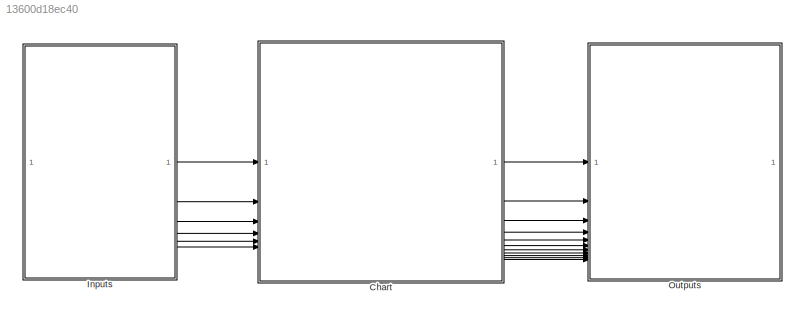
MODEL slx_13600d18ec40
KIND model
CONFIG AbsTol = auto
CONFIG EnableMultiTasking = on
CONFIG FixedStep = 1e-3
CONFIG MaxStep = auto
CONFIG MinStep = auto
CONFIG RelTol = 1e-3
CONFIG SampleTimeConstraint = Unconstrained
CONFIG SolverName = FixedStepAuto
CONFIG StartTime = 0.0
CONFIG StopTime = 10.0
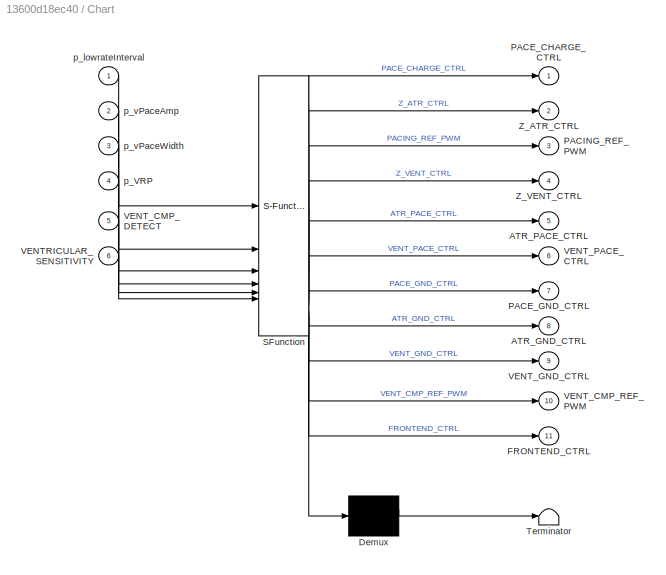
BLOCK [SubSystem] Chart
  ErrorFcn = Stateflow.Translate.translate
  PermitHierarchicalResolution = ExplicitOnly
  PortSchema = {"entries":[{"content":{"sides":[{"content":{"connectorIds":["In1","In2","In3","In4","In6","In5"]},"type":"ConnectorPlacement.EquallySpacedRectSide","uuid":"eebbb991-31ae-4684-8ac7-c8e612c06f23"},{"content":{"connectorIds":["Out1","Out5","Out6","Out2","Out4","Out7","Out3","Out8","Out9","Out10","Out11"],"side":"RIGHT"},"type":"ConnectorPlacement.EquallySpacedRectSide","uuid":"52117d4c-a990-4fec-964...<+486ch>
  SFBlockType = Chart
  TreatAsAtomicUnit = on
BLOCK [Demux] Chart/ Demux 
  Outputs = 1
BLOCK [S-Function] Chart/ SFunction 
  EnableBusSupport = on
  FunctionName = sf_sfun
  PortCounts = [6 12]
  SFcnIsStateOwnerBlock = off
  SFunctionDeploymentMode = off
  Tag = Stateflow S-Function 3
BLOCK [Terminator] Chart/ Terminator 
BLOCK [Outport] Chart/ATR_GND_CTRL
  Port = 8
BLOCK [Outport] Chart/ATR_PACE_CTRL
  Port = 5
BLOCK [Outport] Chart/FRONTEND_CTRL
  Port = 11
BLOCK [Outport] Chart/PACE_CHARGE_CTRL
BLOCK [Outport] Chart/PACE_GND_CTRL
  Port = 7
BLOCK [Outport] Chart/PACING_REF_PWM
  Port = 3
BLOCK [Inport] Chart/VENTRICULAR_SENSITIVITY
  Port = 6
BLOCK [Inport] Chart/VENT_CMP_DETECT
  Port = 5
BLOCK [Outport] Chart/VENT_CMP_REF_PWM
  Port = 10
BLOCK [Outport] Chart/VENT_GND_CTRL
  Port = 9
BLOCK [Outport] Chart/VENT_PACE_CTRL
  Port = 6
BLOCK [Outport] Chart/Z_ATR_CTRL
  Port = 2
BLOCK [Outport] Chart/Z_VENT_CTRL
  Port = 4
BLOCK [Inport] Chart/p_VRP
  Port = 4
BLOCK [Inport] Chart/p_lowrateInterval
BLOCK [Inport] Chart/p_vPaceAmp
  Port = 2
BLOCK [Inport] Chart/p_vPaceWidth
  Port = 3
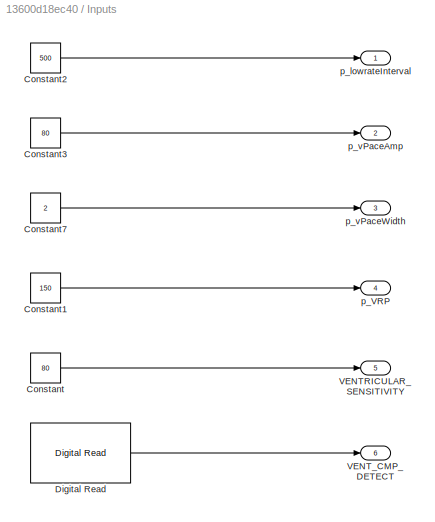
BLOCK [SubSystem] Inputs
BLOCK [Constant] Inputs/Constant
  Value = 80
BLOCK [Constant] Inputs/Constant1
  Value = 150
BLOCK [Constant] Inputs/Constant2
  Value = 500
BLOCK [Constant] Inputs/Constant3
  Value = 80
BLOCK [Constant] Inputs/Constant7
  Value = 2
BLOCK [Reference] Inputs/Digital Read  REF=frdmk64flib/Digital Read
  SourceBlock = frdmk64flib/Digital Read
  SourceType = freedomk64f.DigitalRead
BLOCK [Outport] Inputs/VENTRICULAR_SENSITIVITY
  Port = 5
BLOCK [Outport] Inputs/VENT_CMP_DETECT
  Port = 6
BLOCK [Outport] Inputs/p_VRP
  Port = 4
BLOCK [Outport] Inputs/p_lowrateInterval
BLOCK [Outport] Inputs/p_vPaceAmp
  Port = 2
BLOCK [Outport] Inputs/p_vPaceWidth
  Port = 3
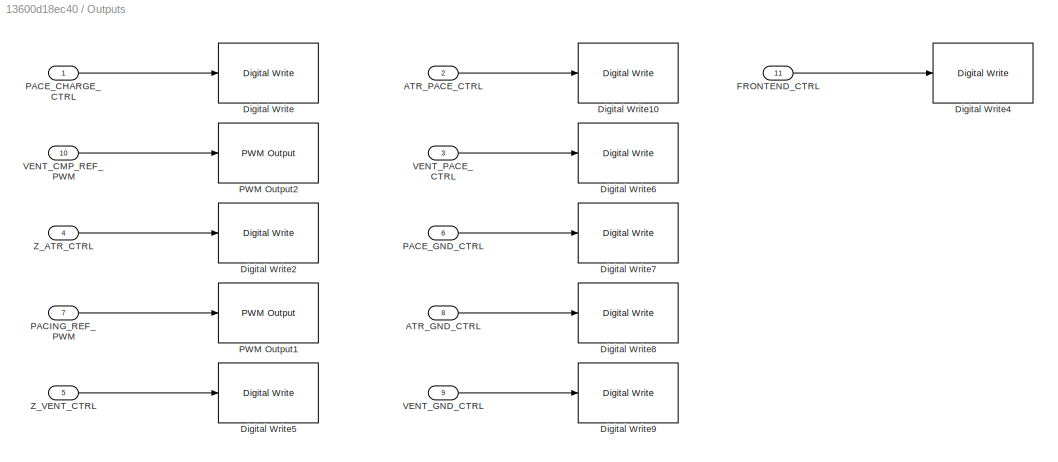
BLOCK [SubSystem] Outputs
BLOCK [Inport] Outputs/ATR_GND_CTRL
  Port = 8
BLOCK [Inport] Outputs/ATR_PACE_CTRL
  Port = 2
BLOCK [Reference] Outputs/Digital Write  REF=frdmk64flib/Digital Write
  SourceBlock = frdmk64flib/Digital Write
  SourceType = freedomk64f.DigitalWrite
BLOCK [Reference] Outputs/Digital Write10  REF=frdmk64flib/Digital Write
  SourceBlock = frdmk64flib/Digital Write
  SourceType = freedomk64f.DigitalWrite
BLOCK [Reference] Outputs/Digital Write2  REF=frdmk64flib/Digital Write
  SourceBlock = frdmk64flib/Digital Write
  SourceType = freedomk64f.DigitalWrite
BLOCK [Reference] Outputs/Digital Write4  REF=frdmk64flib/Digital Write
  SourceBlock = frdmk64flib/Digital Write
  SourceType = freedomk64f.DigitalWrite
BLOCK [Reference] Outputs/Digital Write5  REF=frdmk64flib/Digital Write
  SourceBlock = frdmk64flib/Digital Write
  SourceType = freedomk64f.DigitalWrite
BLOCK [Reference] Outputs/Digital Write6  REF=frdmk64flib/Digital Write
  SourceBlock = frdmk64flib/Digital Write
  SourceType = freedomk64f.DigitalWrite
BLOCK [Reference] Outputs/Digital Write7  REF=frdmk64flib/Digital Write
  SourceBlock = frdmk64flib/Digital Write
  SourceType = freedomk64f.DigitalWrite
BLOCK [Reference] Outputs/Digital Write8  REF=frdmk64flib/Digital Write
  SourceBlock = frdmk64flib/Digital Write
  SourceType = freedomk64f.DigitalWrite
BLOCK [Reference] Outputs/Digital Write9  REF=frdmk64flib/Digital Write
  SourceBlock = frdmk64flib/Digital Write
  SourceType = freedomk64f.DigitalWrite
BLOCK [Inport] Outputs/FRONTEND_CTRL
  Port = 11
BLOCK [Inport] Outputs/PACE_CHARGE_CTRL
BLOCK [Inport] Outputs/PACE_GND_CTRL
  Port = 6
BLOCK [Inport] Outputs/PACING_REF_PWM
  Port = 7
BLOCK [Reference] Outputs/PWM Output1  REF=frdmk64flib/PWM Output
  SourceBlock = frdmk64flib/PWM Output
  SourceType = freedomk64f.PWMOutput
BLOCK [Reference] Outputs/PWM Output2  REF=frdmk64flib/PWM Output
  SourceBlock = frdmk64flib/PWM Output
  SourceType = freedomk64f.PWMOutput
BLOCK [Inport] Outputs/VENT_CMP_REF_PWM
  Port = 10
BLOCK [Inport] Outputs/VENT_GND_CTRL
  Port = 9
BLOCK [Inport] Outputs/VENT_PACE_CTRL
  Port = 3
BLOCK [Inport] Outputs/Z_ATR_CTRL
  Port = 4
BLOCK [Inport] Outputs/Z_VENT_CTRL
  Port = 5
LINE Chart:1 -> Outputs:1
LINE Chart:10 -> Outputs:10
LINE Chart:11 -> Outputs:11
LINE Chart:2 -> Outputs:4
LINE Chart:3 -> Outputs:7
LINE Chart:4 -> Outputs:5
LINE Chart:5 -> Outputs:2
LINE Chart:6 -> Outputs:3
LINE Chart:7 -> Outputs:6
LINE Chart:8 -> Outputs:8
LINE Chart:9 -> Outputs:9
LINE Inputs/Constant1:1 -> Inputs/p_VRP:1
LINE Inputs/Constant2:1 -> Inputs/p_lowrateInterval:1
LINE Inputs/Constant3:1 -> Inputs/p_vPaceAmp:1
LINE Inputs/Constant7:1 -> Inputs/p_vPaceWidth:1
LINE Inputs/Constant:1 -> Inputs/VENTRICULAR_SENSITIVITY:1
LINE Inputs/Digital Read:1 -> Inputs/VENT_CMP_DETECT:1
LINE Inputs:1 -> Chart:1
LINE Inputs:2 -> Chart:2
LINE Inputs:3 -> Chart:3
LINE Inputs:4 -> Chart:4
LINE Inputs:5 -> Chart:6
LINE Inputs:6 -> Chart:5
LINE Outputs/ATR_GND_CTRL:1 -> Outputs/Digital Write8:1
LINE Outputs/ATR_PACE_CTRL:1 -> Outputs/Digital Write10:1
LINE Outputs/FRONTEND_CTRL:1 -> Outputs/Digital Write4:1
LINE Outputs/PACE_CHARGE_CTRL:1 -> Outputs/Digital Write:1
LINE Outputs/PACE_GND_CTRL:1 -> Outputs/Digital Write7:1
LINE Outputs/PACING_REF_PWM:1 -> Outputs/PWM Output1:1
LINE Outputs/VENT_CMP_REF_PWM:1 -> Outputs/PWM Output2:1
LINE Outputs/VENT_GND_CTRL:1 -> Outputs/Digital Write9:1
LINE Outputs/VENT_PACE_CTRL:1 -> Outputs/Digital Write6:1
LINE Outputs/Z_ATR_CTRL:1 -> Outputs/Digital Write2:1
LINE Outputs/Z_VENT_CTRL:1 -> Outputs/Digital Write5:1
CHART Chart states=3 transitions=6
  STATE_LABEL 'Pacing\nentry:\nPACE_CHARGE_CTRL = 0;\nPACE_GND_CTRL = 1;\nATR_PACE_CTRL = 0;\nATR_GND_CTRL = 0;\nZ_ATR_CTRL = 0;\nZ_VENT_CTRL = 0;\nVENT_GND_CTRL = 0;\nVENT_PACE_CTRL = 1;'
  STATE_LABEL 'Charging\nentry:\nPACING_REF_PWM = p_vPaceAmp;\nFRONTEND_CTRL = 1;\nVENT_CMP_REF_PWM = VENTRICULAR_SENSITIVITY;\nPACE_CHARGE_CTRL = 1;\nVENT_PACE_CTRL = 0;\nATR_PACE_CTRL = 0;\n'
  STATE_LABEL 'Discharging\nentry:\nPACE_GND_CTRL = 1;\nVENT_PACE_CTRL = 0;\nATR_PACE_CTRL = 0;\nZ_ATR_CTRL = 0;\nZ_VENT_CTRL = 0;\nATR_GND_CTRL = 0;\nVENT_GND_CTRL = 1;'
CHART  states=0 transitions=0
